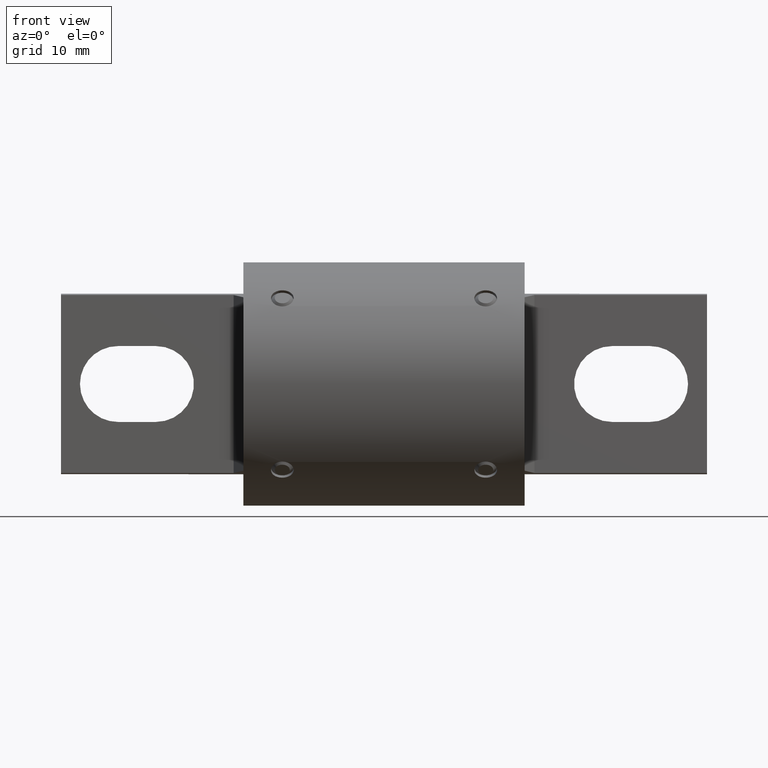
[diagram: clean part render]
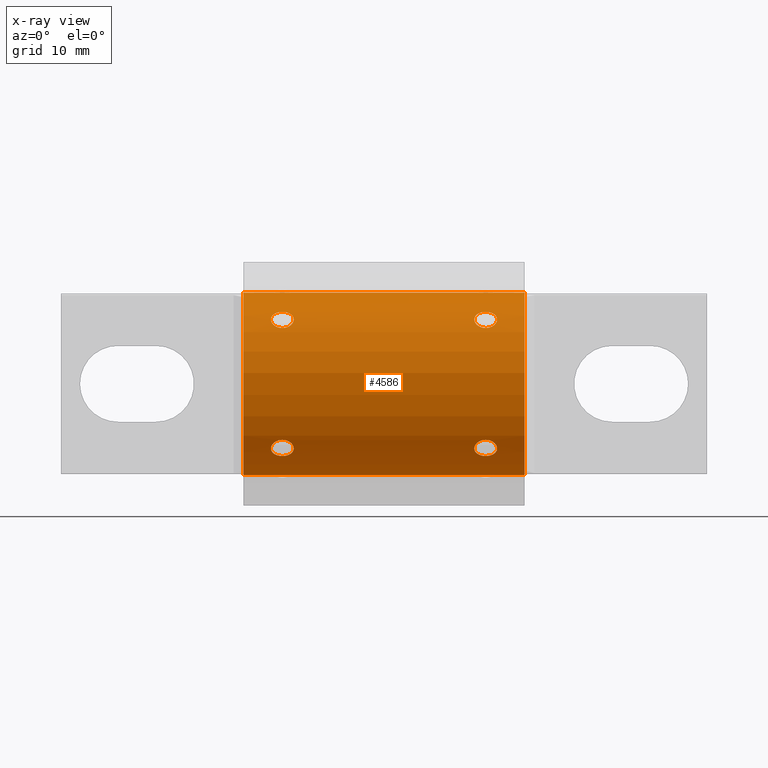
[diagram: x-ray — body ghosted, one internal face saturated and labeled with its STEP entity id]
A machine part, front view, then the same camera in x-ray: the body is ghosted and one INTERNAL B-rep face — a face not visible from any outside direction — is saturated and labeled: STEP entity #4586.
In plain terms, the highlighted cylindrical surface (partial cylindrical patch) has radius 9.525 mm, axis along (-1, -0, -0).
Its self-contained STEP definition (entity closure, byte-faithful):
#6 = CARTESIAN_POINT ( 'NONE',  ( -0.4180999999999999700, -0.2299396546394210100, 0.2962309153756639800 ) ) ;
#37 = CARTESIAN_POINT ( 'NONE',  ( -0.4555715089294223900, -0.2847761189475231900, 0.2440212697245485500 ) ) ;
#38 = CARTESIAN_POINT ( 'NONE',  ( -0.3944690938535241900, -0.2925344709442806400, 0.2346362038863573100 ) ) ;
#43 = CARTESIAN_POINT ( 'NONE',  ( 0.4118991850647004700, -0.2299396546394229800, -0.2962309153756623200 ) ) ;
#81 = VERTEX_POINT ( 'NONE', #5306 ) ;
#93 = CARTESIAN_POINT ( 'NONE',  ( 0.4180999999999999700, -0.2299396546394210100, 0.2962309153756639800 ) ) ;
#110 = CARTESIAN_POINT ( 'NONE',  ( 0.4649705577469752100, -0.2607579605857181500, 0.2695713400175802600 ) ) ;
#138 = ORIENTED_EDGE ( 'NONE', *, *, #2466, .F. ) ;
#187 = CARTESIAN_POINT ( 'NONE',  ( 0.4118991850647004700, -0.2962309153756599300, 0.2299396546394260300 ) ) ;
#230 = CARTESIAN_POINT ( 'NONE',  ( 0.4555840537812967400, -0.2440340268462506400, -0.2847651971205809000 ) ) ;
#239 = DIRECTION ( 'NONE',  ( 0.0000000000000000000, 0.0000000000000000000, -1.000000000000000000 ) ) ;
#246 = CARTESIAN_POINT ( 'NONE',  ( -0.4637613014047909400, -0.2737168898947775500, -0.2563910893085665200 ) ) ;
#249 = CARTESIAN_POINT ( 'NONE',  ( 0.3944636726600919700, -0.2346339456190995300, -0.2925363729506437700 ) ) ;
#251 = CARTESIAN_POINT ( 'NONE',  ( 0.4416751083669288000, -0.2925548616983904600, -0.2346107068987163800 ) ) ;
#283 = CARTESIAN_POINT ( 'NONE',  ( 0.4180999999999999700, -0.2962309153756616000, -0.2299396546394240900 ) ) ;
#302 = CARTESIAN_POINT ( 'NONE',  ( -0.4555715089294223900, -0.2440212697245454900, -0.2847761189475258000 ) ) ;
#332 = ORIENTED_EDGE ( 'NONE', *, *, #2539, .T. ) ;
#445 = CARTESIAN_POINT ( 'NONE',  ( -0.4242216135973178000, -0.2299396546394209800, 0.2962309153756640400 ) ) ;
#464 = CARTESIAN_POINT ( 'NONE',  ( -0.4417363273399079200, -0.2925363729506412800, 0.2346339456191025600 ) ) ;
#489 = CARTESIAN_POINT ( 'NONE',  ( 0.3805781725177718700, -0.2847442657669509400, -0.2440593849590054800 ) ) ;
#505 = CARTESIAN_POINT ( 'NONE',  ( 0.3893239141012427300, -0.2373251590999527500, 0.2903808690873249700 ) ) ;
#514 = CARTESIAN_POINT ( 'NONE',  ( 0.4180999999999999700, -0.2299396546394210100, 0.2962309153756639800 ) ) ;
#534 = CARTESIAN_POINT ( 'NONE',  ( -0.4180999999999999700, -0.2299396546394210100, 0.2962309153756639800 ) ) ;
#535 = CARTESIAN_POINT ( 'NONE',  ( 0.4637609107432410500, -0.2737164319501689300, 0.2563914985816045400 ) ) ;
#588 = CARTESIAN_POINT ( 'NONE',  ( 0.3892670512140061800, -0.2903447976665984300, 0.2373683139526772400 ) ) ;
#631 = CARTESIAN_POINT ( 'NONE',  ( 0.3724386985952090600, -0.2563910893085636400, 0.2737168898947801600 ) ) ;
#658 = CARTESIAN_POINT ( 'NONE',  ( 0.5780999999999999500, 0.0000000000000000000, 0.0000000000000000000 ) ) ;
#675 = CARTESIAN_POINT ( 'NONE',  ( -0.4180999999999999700, -0.2962309153756616000, -0.2299396546394240900 ) ) ;
#704 = CARTESIAN_POINT ( 'NONE',  ( -0.4649772465181072300, -0.2694815387484909600, -0.2608489442734402400 ) ) ;
#723 = VERTEX_POINT ( 'NONE', #283 ) ;
#751 = VERTEX_POINT ( 'NONE', #1153 ) ;
#763 = CARTESIAN_POINT ( 'NONE',  ( -0.3771371379742345900, -0.2813587469393255000, 0.2479809290755742300 ) ) ;
#783 = EDGE_CURVE ( 'NONE', #723, #5373, #928, .T. ) ;
#842 = B_SPLINE_CURVE_WITH_KNOTS ( 'NONE', 3,
 ( #2117, #903, #3401, #464, #2969, #37, #2567, #5049, #2151, #4640, #1710, #4236, #1300, #3813, #879, #3389, #445, #2953 ),
 .UNSPECIFIED., .F., .F.,
 ( 4, 2, 2, 2, 2, 2, 2, 2, 4 ),
 ( 1.734723475976807100E-018, 0.0004657597124495650500, 0.0009315194248991283700, 0.001397279137348691600, 0.001863038849798255000, 0.002328798562247818200, 0.002794558274697381500, 0.003260317987146944900, 0.003726077699596508300 ),
 .UNSPECIFIED. ) ;
#865 = CARTESIAN_POINT ( 'NONE',  ( -0.4058077145270014300, -0.2309229236349580600, 0.2954744223021058500 ) ) ;
#866 = ORIENTED_EDGE ( 'NONE', *, *, #3666, .F. ) ;
#879 = CARTESIAN_POINT ( 'NONE',  ( -0.4417188093062415800, -0.2346261410544433500, 0.2925426103389441900 ) ) ;
#881 = CARTESIAN_POINT ( 'NONE',  ( -0.3892474903206559200, -0.2903350126303684300, 0.2373802944451027500 ) ) ;
#903 = CARTESIAN_POINT ( 'NONE',  ( -0.4243008149352994800, -0.2962309153756599300, 0.2299396546394259800 ) ) ;
#922 = CARTESIAN_POINT ( 'NONE',  ( 0.4058321465423624400, -0.2954816860053965900, -0.2309137894657465300 ) ) ;
#928 = B_SPLINE_CURVE_WITH_KNOTS ( 'NONE', 3,
 ( #2787, #3616, #4850, #251, #5272, #2768, #3194, #4001, #5242, #2754, #3599, #3174, #230, #3980, #1490, #4415, #1899, #4831 ),
 .UNSPECIFIED., .F., .F.,
 ( 4, 2, 2, 2, 2, 2, 2, 2, 4 ),
 ( 0.003726077699596506100, 0.004191725821279350400, 0.004657373942962193800, 0.005123022064645037200, 0.005588670186327881500, 0.006054318308010725800, 0.006519966429693569200, 0.006985614551376412600, 0.007451262673059256900 ),
 .UNSPECIFIED. ) ;
#948 = EDGE_CURVE ( 'NONE', #4056, #2052, #5105, .T. ) ;
#949 = CARTESIAN_POINT ( 'NONE',  ( -0.4556218274822280700, -0.2847442657669509400, -0.2440593849590054800 ) ) ;
#966 = EDGE_CURVE ( 'NONE', #3420, #4467, #3588, .T. ) ;
#981 = CARTESIAN_POINT ( 'NONE',  ( 0.4469525096793440800, -0.2903350126303684300, 0.2373802944451027500 ) ) ;
#1021 = EDGE_CURVE ( 'NONE', #1324, #81, #1310, .T. ) ;
#1091 = CARTESIAN_POINT ( 'NONE',  ( 0.3724606125069113100, -0.2563461561835481100, -0.2737581611074181300 ) ) ;
#1121 = CARTESIAN_POINT ( 'NONE',  ( -0.4243008149352995300, -0.2299396546394229800, -0.2962309153756623700 ) ) ;
#1134 = VERTEX_POINT ( 'NONE', #2582 ) ;
#1149 = CARTESIAN_POINT ( 'NONE',  ( -0.4417363273399078600, -0.2346339456190994500, -0.2925363729506438300 ) ) ;
#1153 = CARTESIAN_POINT ( 'NONE',  ( -0.4180999999999999700, -0.2962309153756616000, -0.2299396546394240900 ) ) ;
#1191 = CARTESIAN_POINT ( 'NONE',  ( -0.3724553504231155100, -0.2563465726113679500, 0.2737584807804737700 ) ) ;
#1241 = VECTOR ( 'NONE', #2294, 39.37007874015748100 ) ;
#1300 = CARTESIAN_POINT ( 'NONE',  ( -0.4556218274822280700, -0.2440593849590025300, 0.2847442657669535000 ) ) ;
#1310 = CIRCLE ( 'NONE', #4145, 0.3750000000000000600 ) ;
#1320 = CARTESIAN_POINT ( 'NONE',  ( -0.3724553504231155100, -0.2737584807804709400, -0.2563465726113707800 ) ) ;
#1324 = VERTEX_POINT ( 'NONE', #2235 ) ;
#1347 = FACE_BOUND ( 'NONE', #3904, .T. ) ;
#1357 = CARTESIAN_POINT ( 'NONE',  ( 0.4181000000000000300, -0.2299396546394230600, -0.2962309153756624300 ) ) ;
#1361 = CARTESIAN_POINT ( 'NONE',  ( 0.4119783864026819700, -0.2299396546394210600, 0.2962309153756640400 ) ) ;
#1377 = CARTESIAN_POINT ( 'NONE',  ( 0.4416751083669286900, -0.2346107068987132700, 0.2925548616983929500 ) ) ;
#1385 = CARTESIAN_POINT ( 'NONE',  ( -0.4180999999999999700, -0.2962309153756616000, -0.2299396546394240900 ) ) ;
#1393 = CARTESIAN_POINT ( 'NONE',  ( 0.4304582779034259500, -0.2954632344898540100, 0.2309373116879208900 ) ) ;
#1481 = ORIENTED_EDGE ( 'NONE', *, *, #4707, .F. ) ;
#1484 = FACE_OUTER_BOUND ( 'NONE', #2651, .T. ) ;
#1490 = CARTESIAN_POINT ( 'NONE',  ( 0.4417309061464757000, -0.2346362038863542600, -0.2925344709442830300 ) ) ;
#1491 = ORIENTED_EDGE ( 'NONE', *, *, #783, .F. ) ;
#1509 = CARTESIAN_POINT ( 'NONE',  ( 0.3771371615668523400, -0.2479877292289095500, -0.2813520369837123600 ) ) ;
#1533 = EDGE_LOOP ( 'NONE', ( #4036, #138 ) ) ;
#1534 = CARTESIAN_POINT ( 'NONE',  ( -0.4119798530721612800, -0.2962309153756616500, -0.2299396546394240600 ) ) ;
#1539 = DIRECTION ( 'NONE',  ( -1.000000000000000000, -0.0000000000000000000, -0.0000000000000000000 ) ) ;
#1565 = CARTESIAN_POINT ( 'NONE',  ( -0.4417188093062415800, -0.2925426103389417400, -0.2346261410544463500 ) ) ;
#1593 = AXIS2_PLACEMENT_3D ( 'NONE', #658, #3183, #239 ) ;
#1609 = CARTESIAN_POINT ( 'NONE',  ( -0.3771707862272294900, -0.2479366744600188800, 0.2813977195119657900 ) ) ;
#1619 = CARTESIAN_POINT ( 'NONE',  ( -0.4057417220965740000, -0.2309373116879179000, -0.2954632344898564500 ) ) ;
#1686 = CARTESIAN_POINT ( 'NONE',  ( -0.3944690938535241900, -0.2346362038863542600, -0.2925344709442830300 ) ) ;
#1710 = CARTESIAN_POINT ( 'NONE',  ( -0.4637613014047909400, -0.2563910893085635800, 0.2737168898947802100 ) ) ;
#1735 = ORIENTED_EDGE ( 'NONE', *, *, #4594, .T. ) ;
#1785 = CARTESIAN_POINT ( 'NONE',  ( 0.3944811906937584800, -0.2925426103389417400, -0.2346261410544463500 ) ) ;
#1795 = CARTESIAN_POINT ( 'NONE',  ( -0.4303850546970279200, -0.2309173462423065900, -0.2954789284201421200 ) ) ;
#1805 = CARTESIAN_POINT ( 'NONE',  ( 0.4181000000000000300, -0.2962309153756599900, 0.2299396546394261400 ) ) ;
#1852 = AXIS2_PLACEMENT_3D ( 'NONE', #4507, #4028, #4859 ) ;
#1878 = CARTESIAN_POINT ( 'NONE',  ( 0.4555840537812967400, -0.2847651971205784100, 0.2440340268462536100 ) ) ;
#1882 = CARTESIAN_POINT ( 'NONE',  ( 0.3771410036550170700, -0.2479751180981148200, 0.2813639409994269600 ) ) ;
#1887 = CARTESIAN_POINT ( 'NONE',  ( 0.5780999999999999500, 4.592425496802573600E-017, -0.3750000000000000600 ) ) ;
#1899 = CARTESIAN_POINT ( 'NONE',  ( 0.4242993292900743600, -0.2299396546394230100, -0.2962309153756624300 ) ) ;
#1900 = CARTESIAN_POINT ( 'NONE',  ( 0.4590292137727705100, -0.2479366744600188800, 0.2813977195119657900 ) ) ;
#1904 = B_SPLINE_CURVE_WITH_KNOTS ( 'NONE', 3,
 ( #2621, #1121, #1795, #1149, #5321, #302, #2824, #3685, #3870, #704, #246, #4058, #949, #4492, #1565, #2409, #4282, #1385 ),
 .UNSPECIFIED., .F., .F.,
 ( 4, 2, 2, 2, 2, 2, 2, 2, 4 ),
 ( 0.0000000000000000000, 0.0004657597124495634800, 0.0009315194248991269600, 0.001397279137348690500, 0.001863038849798253900, 0.002328798562247817300, 0.002794558274697381100, 0.003260317987146944500, 0.003726077699596507800 ),
 .UNSPECIFIED. ) ;
#1916 = CARTESIAN_POINT ( 'NONE',  ( 0.3712227534818928800, -0.2694815387484909600, -0.2608489442734402400 ) ) ;
#1920 = CARTESIAN_POINT ( 'NONE',  ( -0.3893003319081707000, -0.2903611283727780500, -0.2373482781269972400 ) ) ;
#1940 = CARTESIAN_POINT ( 'NONE',  ( -0.4058077145270014300, -0.2954744223021034700, -0.2309229236349610300 ) ) ;
#2036 = CARTESIAN_POINT ( 'NONE',  ( -0.3806531594146073100, -0.2439967136950375900, 0.2847971097216142100 ) ) ;
#2052 = VERTEX_POINT ( 'NONE', #2503 ) ;
#2117 = CARTESIAN_POINT ( 'NONE',  ( -0.4180999999999999200, -0.2962309153756600400, 0.2299396546394261400 ) ) ;
#2151 = CARTESIAN_POINT ( 'NONE',  ( -0.4649727471507275600, -0.2695055038698812600, 0.2608241837688065600 ) ) ;
#2156 = B_SPLINE_CURVE_WITH_KNOTS ( 'NONE', 3,
 ( #1357, #43, #4000, #249, #4849, #2354, #1509, #1091, #4437, #1916, #2767, #5269, #489, #3429, #1785, #922, #2590, #4305 ),
 .UNSPECIFIED., .F., .F.,
 ( 4, 2, 2, 2, 2, 2, 2, 2, 4 ),
 ( 1.734723475976807100E-018, 0.0004657597124495647800, 0.0009315194248991278300, 0.001397279137348691000, 0.001863038849798253900, 0.002328798562247816900, 0.002794558274697380200, 0.003260317987146943200, 0.003726077699596506100 ),
 .UNSPECIFIED. ) ;
#2173 = DIRECTION ( 'NONE',  ( 0.0000000000000000000, 0.0000000000000000000, -1.000000000000000000 ) ) ;
#2226 = CARTESIAN_POINT ( 'NONE',  ( 0.4637446495768846600, -0.2563465726113679500, 0.2737584807804737700 ) ) ;
#2235 = CARTESIAN_POINT ( 'NONE',  ( -0.5780999999999999500, 0.0000000000000000000, 0.3750000000000000600 ) ) ;
#2270 = ORIENTED_EDGE ( 'NONE', *, *, #1021, .F. ) ;
#2276 = CARTESIAN_POINT ( 'NONE',  ( 0.3724606125069113100, -0.2737581611074155800, 0.2563461561835510500 ) ) ;
#2294 = DIRECTION ( 'NONE',  ( -1.000000000000000000, -0.0000000000000000000, -0.0000000000000000000 ) ) ;
#2296 = CARTESIAN_POINT ( 'NONE',  ( 0.3806284910705776100, -0.2847761189475231400, 0.2440212697245485500 ) ) ;
#2354 = CARTESIAN_POINT ( 'NONE',  ( 0.3806284910705776100, -0.2440212697245454600, -0.2847761189475257500 ) ) ;
#2409 = CARTESIAN_POINT ( 'NONE',  ( -0.4303678534576373900, -0.2954816860053965900, -0.2309137894657465300 ) ) ;
#2466 = EDGE_CURVE ( 'NONE', #4467, #3420, #3662, .T. ) ;
#2473 = FACE_BOUND ( 'NONE', #1533, .T. ) ;
#2503 = CARTESIAN_POINT ( 'NONE',  ( -0.4180999999999999200, -0.2962309153756600400, 0.2299396546394261400 ) ) ;
#2539 = EDGE_CURVE ( 'NONE', #3618, #81, #4448, .T. ) ;
#2567 = CARTESIAN_POINT ( 'NONE',  ( -0.4590628384331477100, -0.2813520369837097500, 0.2479877292289124900 ) ) ;
#2571 = CARTESIAN_POINT ( 'NONE',  ( -0.5780999999999999500, 0.0000000000000000000, 0.0000000000000000000 ) ) ;
#2582 = CARTESIAN_POINT ( 'NONE',  ( 0.5780999999999999500, 0.0000000000000000000, 0.3750000000000000600 ) ) ;
#2590 = CARTESIAN_POINT ( 'NONE',  ( 0.4119783864026819700, -0.2962309153756616500, -0.2299396546394240900 ) ) ;
#2621 = CARTESIAN_POINT ( 'NONE',  ( -0.4180999999999999700, -0.2299396546394230600, -0.2962309153756623700 ) ) ;
#2633 = CARTESIAN_POINT ( 'NONE',  ( 0.4058321465423623800, -0.2309137894657434200, 0.2954816860053989200 ) ) ;
#2651 = EDGE_LOOP ( 'NONE', ( #1735, #332, #2270, #4186 ) ) ;
#2668 = CARTESIAN_POINT ( 'NONE',  ( -0.3771707862272294900, -0.2813977195119631300, -0.2479366744600217400 ) ) ;
#2670 = CARTESIAN_POINT ( 'NONE',  ( 0.4181000000000000300, -0.2962309153756599900, 0.2299396546394261400 ) ) ;
#2695 = CARTESIAN_POINT ( 'NONE',  ( -0.4180999999999999200, -0.2962309153756600400, 0.2299396546394261400 ) ) ;
#2754 = CARTESIAN_POINT ( 'NONE',  ( 0.4649794183071518400, -0.2608061243979986600, -0.2695247425454525000 ) ) ;
#2767 = CARTESIAN_POINT ( 'NONE',  ( 0.3724386985952090100, -0.2737168898947776000, -0.2563910893085664700 ) ) ;
#2768 = CARTESIAN_POINT ( 'NONE',  ( 0.4555468405853926300, -0.2847971097216117100, -0.2439967136950405000 ) ) ;
#2787 = CARTESIAN_POINT ( 'NONE',  ( 0.4180999999999999700, -0.2962309153756616000, -0.2299396546394240900 ) ) ;
#2824 = CARTESIAN_POINT ( 'NONE',  ( -0.4590628384331477100, -0.2479877292289095500, -0.2813520369837123600 ) ) ;
#2826 = CARTESIAN_POINT ( 'NONE',  ( 0.4181000000000000300, -0.2299396546394230600, -0.2962309153756624300 ) ) ;
#2855 = EDGE_CURVE ( 'NONE', #1134, #1324, #4127, .T. ) ;
#2953 = CARTESIAN_POINT ( 'NONE',  ( -0.4180999999999999700, -0.2299396546394210100, 0.2962309153756639800 ) ) ;
#2954 = CARTESIAN_POINT ( 'NONE',  ( -0.3724390892567588400, -0.2737164319501689800, 0.2563914985816045900 ) ) ;
#2969 = CARTESIAN_POINT ( 'NONE',  ( -0.4469329487859938800, -0.2903447976665984300, 0.2373683139526772700 ) ) ;
#2970 = CARTESIAN_POINT ( 'NONE',  ( -0.4057417220965740000, -0.2954632344898540100, 0.2309373116879208900 ) ) ;
#3023 = CARTESIAN_POINT ( 'NONE',  ( 0.3944811906937583700, -0.2346261410544432700, 0.2925426103389440800 ) ) ;
#3055 = CARTESIAN_POINT ( 'NONE',  ( 0.4649794183071518400, -0.2695247425454498400, 0.2608061243980015500 ) ) ;
#3068 = ORIENTED_EDGE ( 'NONE', *, *, #3214, .F. ) ;
#3107 = CIRCLE ( 'NONE', #1593, 0.3750000000000000600 ) ;
#3130 = CARTESIAN_POINT ( 'NONE',  ( 0.4058149453029719600, -0.2954789284201396700, 0.2309173462423096100 ) ) ;
#3174 = CARTESIAN_POINT ( 'NONE',  ( 0.4590628620257652400, -0.2479809290755713400, -0.2813587469393280500 ) ) ;
#3183 = DIRECTION ( 'NONE',  ( 1.000000000000000000, 0.0000000000000000000, 0.0000000000000000000 ) ) ;
#3194 = CARTESIAN_POINT ( 'NONE',  ( 0.4590292137727705100, -0.2813977195119631800, -0.2479366744600217700 ) ) ;
#3207 = CARTESIAN_POINT ( 'NONE',  ( 0.4180999999999999700, -0.2299396546394210100, 0.2962309153756639800 ) ) ;
#3214 = EDGE_CURVE ( 'NONE', #751, #4858, #3491, .T. ) ;
#3309 = CARTESIAN_POINT ( 'NONE',  ( -0.3806159462187033200, -0.2440340268462506400, -0.2847651971205809000 ) ) ;
#3389 = CARTESIAN_POINT ( 'NONE',  ( -0.4303678534576373900, -0.2309137894657434200, 0.2954816860053989800 ) ) ;
#3401 = CARTESIAN_POINT ( 'NONE',  ( -0.4303850546970279800, -0.2954789284201395600, 0.2309173462423096700 ) ) ;
#3420 = VERTEX_POINT ( 'NONE', #2670 ) ;
#3429 = CARTESIAN_POINT ( 'NONE',  ( 0.3893239141012427300, -0.2903808690873223600, -0.2373251590999557200 ) ) ;
#3467 = CARTESIAN_POINT ( 'NONE',  ( 0.4242201469278386600, -0.2299396546394209500, 0.2962309153756639300 ) ) ;
#3483 = CARTESIAN_POINT ( 'NONE',  ( 0.4590628620257652400, -0.2813587469393253900, 0.2479809290755742300 ) ) ;
#3491 = B_SPLINE_CURVE_WITH_KNOTS ( 'NONE', 3,
 ( #675, #1534, #1940, #4458, #1920, #4784, #2668, #1320, #4388, #4444, #3648, #4149, #3309, #4070, #1686, #1619, #5119, #4744 ),
 .UNSPECIFIED., .F., .F.,
 ( 4, 2, 2, 2, 2, 2, 2, 2, 4 ),
 ( 0.003726077699596507800, 0.004191725821279352100, 0.004657373942962196400, 0.005123022064645040700, 0.005588670186327885900, 0.006054318308010729300, 0.006519966429693574400, 0.006985614551376418700, 0.007451262673059263000 ),
 .UNSPECIFIED. ) ;
#3531 = CARTESIAN_POINT ( 'NONE',  ( 0.3944636726600919700, -0.2925363729506413300, 0.2346339456191025600 ) ) ;
#3578 = FACE_BOUND ( 'NONE', #5189, .T. ) ;
#3588 = B_SPLINE_CURVE_WITH_KNOTS ( 'NONE', 3,
 ( #4381, #187, #3130, #3531, #588, #2296, #4797, #2276, #4775, #5181, #631, #1882, #4290, #505, #3023, #2633, #1361, #93 ),
 .UNSPECIFIED., .F., .F.,
 ( 4, 2, 2, 2, 2, 2, 2, 2, 4 ),
 ( 1.734723475976807100E-018, 0.0004657597124495646200, 0.0009315194248991275000, 0.001397279137348690300, 0.001863038849798253300, 0.002328798562247816000, 0.002794558274697378900, 0.003260317987146941900, 0.003726077699596504800 ),
 .UNSPECIFIED. ) ;
#3599 = CARTESIAN_POINT ( 'NONE',  ( 0.4637609107432410500, -0.2563914985816017600, -0.2737164319501717000 ) ) ;
#3616 = CARTESIAN_POINT ( 'NONE',  ( 0.4242201469278388800, -0.2962309153756616500, -0.2299396546394240600 ) ) ;
#3618 = VERTEX_POINT ( 'NONE', #1887 ) ;
#3648 = CARTESIAN_POINT ( 'NONE',  ( -0.3724390892567588400, -0.2563914985816017600, -0.2737164319501717000 ) ) ;
#3662 = B_SPLINE_CURVE_WITH_KNOTS ( 'NONE', 3,
 ( #514, #3467, #3876, #1377, #4416, #4719, #1900, #2226, #110, #3055, #535, #3483, #1878, #981, #3895, #1393, #4323, #1805 ),
 .UNSPECIFIED., .F., .F.,
 ( 4, 2, 2, 2, 2, 2, 2, 2, 4 ),
 ( 0.003726077699596504800, 0.004191725821279348700, 0.004657373942962192900, 0.005123022064645037200, 0.005588670186327881500, 0.006054318308010725800, 0.006519966429693569200, 0.006985614551376413500, 0.007451262673059257800 ),
 .UNSPECIFIED. ) ;
#3666 = EDGE_CURVE ( 'NONE', #5373, #723, #2156, .T. ) ;
#3685 = CARTESIAN_POINT ( 'NONE',  ( -0.4637393874930886300, -0.2563461561835481100, -0.2737581611074181300 ) ) ;
#3710 = CARTESIAN_POINT ( 'NONE',  ( -0.3712205816928482200, -0.2695247425454498400, 0.2608061243980015500 ) ) ;
#3801 = CARTESIAN_POINT ( 'NONE',  ( -0.4119798530721611700, -0.2299396546394210100, 0.2962309153756639800 ) ) ;
#3813 = CARTESIAN_POINT ( 'NONE',  ( -0.4468760858987573200, -0.2373251590999527500, 0.2903808690873249700 ) ) ;
#3814 = CARTESIAN_POINT ( 'NONE',  ( -0.3806159462187033200, -0.2847651971205783500, 0.2440340268462536100 ) ) ;
#3868 = EDGE_LOOP ( 'NONE', ( #866, #1491 ) ) ;
#3870 = CARTESIAN_POINT ( 'NONE',  ( -0.4649727471507275600, -0.2608241837688037900, -0.2695055038698840300 ) ) ;
#3876 = CARTESIAN_POINT ( 'NONE',  ( 0.4303922854729985100, -0.2309229236349580100, 0.2954744223021059700 ) ) ;
#3895 = CARTESIAN_POINT ( 'NONE',  ( 0.4417309061464758100, -0.2925344709442806400, 0.2346362038863573100 ) ) ;
#3904 = EDGE_LOOP ( 'NONE', ( #1481, #3068 ) ) ;
#3980 = CARTESIAN_POINT ( 'NONE',  ( 0.4469525096793440800, -0.2373802944450996200, -0.2903350126303709300 ) ) ;
#4000 = CARTESIAN_POINT ( 'NONE',  ( 0.4058149453029719600, -0.2309173462423065900, -0.2954789284201420600 ) ) ;
#4001 = CARTESIAN_POINT ( 'NONE',  ( 0.4637446495768844400, -0.2737584807804711000, -0.2563465726113707800 ) ) ;
#4025 = EDGE_CURVE ( 'NONE', #2052, #4056, #842, .T. ) ;
#4028 = DIRECTION ( 'NONE',  ( -1.000000000000000000, -0.0000000000000000000, -0.0000000000000000000 ) ) ;
#4036 = ORIENTED_EDGE ( 'NONE', *, *, #966, .F. ) ;
#4056 = VERTEX_POINT ( 'NONE', #534 ) ;
#4058 = CARTESIAN_POINT ( 'NONE',  ( -0.4590589963449827100, -0.2813639409994245200, -0.2479751180981177900 ) ) ;
#4070 = CARTESIAN_POINT ( 'NONE',  ( -0.3892474903206559200, -0.2373802944450996200, -0.2903350126303709300 ) ) ;
#4118 = CARTESIAN_POINT ( 'NONE',  ( -0.3712294422530248400, -0.2607579605857181500, 0.2695713400175802600 ) ) ;
#4127 = LINE ( 'NONE', #4446, #5224 ) ;
#4145 = AXIS2_PLACEMENT_3D ( 'NONE', #2571, #4662, #2173 ) ;
#4149 = CARTESIAN_POINT ( 'NONE',  ( -0.3771371379742345900, -0.2479809290755713400, -0.2813587469393280500 ) ) ;
#4186 = ORIENTED_EDGE ( 'NONE', *, *, #2855, .F. ) ;
#4236 = CARTESIAN_POINT ( 'NONE',  ( -0.4590589963449827100, -0.2479751180981148200, 0.2813639409994270200 ) ) ;
#4241 = CYLINDRICAL_SURFACE ( 'NONE', #1852, 0.3750000000000000600 ) ;
#4282 = CARTESIAN_POINT ( 'NONE',  ( -0.4242216135973178000, -0.2962309153756616500, -0.2299396546394240600 ) ) ;
#4290 = CARTESIAN_POINT ( 'NONE',  ( 0.3805781725177718700, -0.2440593849590025300, 0.2847442657669535000 ) ) ;
#4305 = CARTESIAN_POINT ( 'NONE',  ( 0.4180999999999999700, -0.2962309153756616000, -0.2299396546394240900 ) ) ;
#4323 = CARTESIAN_POINT ( 'NONE',  ( 0.4242993292900741900, -0.2962309153756599300, 0.2299396546394261200 ) ) ;
#4342 = CARTESIAN_POINT ( 'NONE',  ( 0.5780999999999999500, 4.592425496802573600E-017, -0.3750000000000000600 ) ) ;
#4381 = CARTESIAN_POINT ( 'NONE',  ( 0.4181000000000000300, -0.2962309153756599900, 0.2299396546394261400 ) ) ;
#4388 = CARTESIAN_POINT ( 'NONE',  ( -0.3712294422530248400, -0.2695713400175774900, -0.2607579605857210400 ) ) ;
#4415 = CARTESIAN_POINT ( 'NONE',  ( 0.4304582779034257200, -0.2309373116879179000, -0.2954632344898564500 ) ) ;
#4416 = CARTESIAN_POINT ( 'NONE',  ( 0.4468996680918292400, -0.2373482781269941600, 0.2903611283727805500 ) ) ;
#4437 = CARTESIAN_POINT ( 'NONE',  ( 0.3712272528492723800, -0.2608241837688037900, -0.2695055038698839800 ) ) ;
#4444 = CARTESIAN_POINT ( 'NONE',  ( -0.3712205816928482200, -0.2608061243979986600, -0.2695247425454525000 ) ) ;
#4446 = CARTESIAN_POINT ( 'NONE',  ( 0.5780999999999999500, 0.0000000000000000000, 0.3750000000000000600 ) ) ;
#4448 = LINE ( 'NONE', #4342, #1241 ) ;
#4458 = CARTESIAN_POINT ( 'NONE',  ( -0.3945248916330710300, -0.2925548616983904600, -0.2346107068987163800 ) ) ;
#4467 = VERTEX_POINT ( 'NONE', #3207 ) ;
#4492 = CARTESIAN_POINT ( 'NONE',  ( -0.4468760858987573200, -0.2903808690873223600, -0.2373251590999557200 ) ) ;
#4507 = CARTESIAN_POINT ( 'NONE',  ( 0.5780999999999999500, 0.0000000000000000000, 0.0000000000000000000 ) ) ;
#4545 = CARTESIAN_POINT ( 'NONE',  ( -0.3893003319081707000, -0.2373482781269941300, 0.2903611283727805000 ) ) ;
#4581 = ORIENTED_EDGE ( 'NONE', *, *, #4025, .F. ) ;
#4586 = ADVANCED_FACE ( 'NONE', ( #4675, #1347, #2473, #3578, #1484 ), #4241, .F. ) ;
#4589 = CARTESIAN_POINT ( 'NONE',  ( -0.4180999999999999700, -0.2299396546394230600, -0.2962309153756623700 ) ) ;
#4594 = EDGE_CURVE ( 'NONE', #1134, #3618, #3107, .T. ) ;
#4640 = CARTESIAN_POINT ( 'NONE',  ( -0.4649772465181072300, -0.2608489442734374100, 0.2694815387484937300 ) ) ;
#4662 = DIRECTION ( 'NONE',  ( 1.000000000000000000, 0.0000000000000000000, 0.0000000000000000000 ) ) ;
#4675 = FACE_BOUND ( 'NONE', #3868, .T. ) ;
#4707 = EDGE_CURVE ( 'NONE', #4858, #751, #1904, .T. ) ;
#4719 = CARTESIAN_POINT ( 'NONE',  ( 0.4555468405853926300, -0.2439967136950375000, 0.2847971097216142100 ) ) ;
#4744 = CARTESIAN_POINT ( 'NONE',  ( -0.4180999999999999700, -0.2299396546394230600, -0.2962309153756623700 ) ) ;
#4775 = CARTESIAN_POINT ( 'NONE',  ( 0.3712272528492723800, -0.2695055038698812600, 0.2608241837688065600 ) ) ;
#4784 = CARTESIAN_POINT ( 'NONE',  ( -0.3806531594146073100, -0.2847971097216116500, -0.2439967136950405800 ) ) ;
#4797 = CARTESIAN_POINT ( 'NONE',  ( 0.3771371615668523400, -0.2813520369837097500, 0.2479877292289124900 ) ) ;
#4831 = CARTESIAN_POINT ( 'NONE',  ( 0.4181000000000000300, -0.2299396546394230600, -0.2962309153756624300 ) ) ;
#4849 = CARTESIAN_POINT ( 'NONE',  ( 0.3892670512140061800, -0.2373683139526742400, -0.2903447976666009300 ) ) ;
#4850 = CARTESIAN_POINT ( 'NONE',  ( 0.4303922854729985100, -0.2954744223021034700, -0.2309229236349610300 ) ) ;
#4858 = VERTEX_POINT ( 'NONE', #4589 ) ;
#4859 = DIRECTION ( 'NONE',  ( 0.0000000000000000000, 0.0000000000000000000, 1.000000000000000000 ) ) ;
#5014 = CARTESIAN_POINT ( 'NONE',  ( -0.3945248916330709200, -0.2346107068987132700, 0.2925548616983929500 ) ) ;
#5049 = CARTESIAN_POINT ( 'NONE',  ( -0.4637393874930886300, -0.2737581611074154700, 0.2563461561835510000 ) ) ;
#5051 = CARTESIAN_POINT ( 'NONE',  ( -0.4119006707099257500, -0.2962309153756599900, 0.2299396546394261200 ) ) ;
#5105 = B_SPLINE_CURVE_WITH_KNOTS ( 'NONE', 3,
 ( #6, #3801, #865, #5014, #4545, #2036, #1609, #1191, #4118, #3710, #2954, #763, #3814, #881, #38, #2970, #5051, #2695 ),
 .UNSPECIFIED., .F., .F.,
 ( 4, 2, 2, 2, 2, 2, 2, 2, 4 ),
 ( 0.003726077699596508300, 0.004191725821279352100, 0.004657373942962196400, 0.005123022064645040700, 0.005588670186327885000, 0.006054318308010729300, 0.006519966429693572700, 0.006985614551376417000, 0.007451262673059261300 ),
 .UNSPECIFIED. ) ;
#5119 = CARTESIAN_POINT ( 'NONE',  ( -0.4119006707099257500, -0.2299396546394231200, -0.2962309153756624300 ) ) ;
#5181 = CARTESIAN_POINT ( 'NONE',  ( 0.3712227534818927100, -0.2608489442734374700, 0.2694815387484936200 ) ) ;
#5189 = EDGE_LOOP ( 'NONE', ( #4581, #5281 ) ) ;
#5224 = VECTOR ( 'NONE', #1539, 39.37007874015748100 ) ;
#5242 = CARTESIAN_POINT ( 'NONE',  ( 0.4649705577469751000, -0.2695713400175774900, -0.2607579605857209800 ) ) ;
#5269 = CARTESIAN_POINT ( 'NONE',  ( 0.3771410036550171800, -0.2813639409994245200, -0.2479751180981177900 ) ) ;
#5272 = CARTESIAN_POINT ( 'NONE',  ( 0.4468996680918292400, -0.2903611283727780500, -0.2373482781269972400 ) ) ;
#5281 = ORIENTED_EDGE ( 'NONE', *, *, #948, .F. ) ;
#5306 = CARTESIAN_POINT ( 'NONE',  ( -0.5780999999999999500, 4.592425496802573600E-017, -0.3750000000000000600 ) ) ;
#5321 = CARTESIAN_POINT ( 'NONE',  ( -0.4469329487859938800, -0.2373683139526742700, -0.2903447976666009300 ) ) ;
#5373 = VERTEX_POINT ( 'NONE', #2826 ) ;